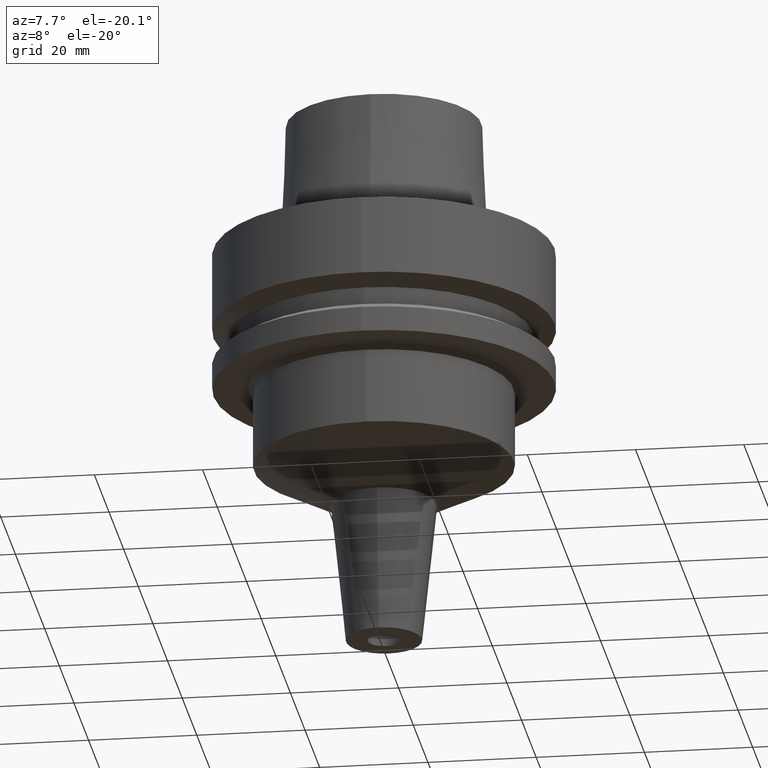
[diagram: clean part render]
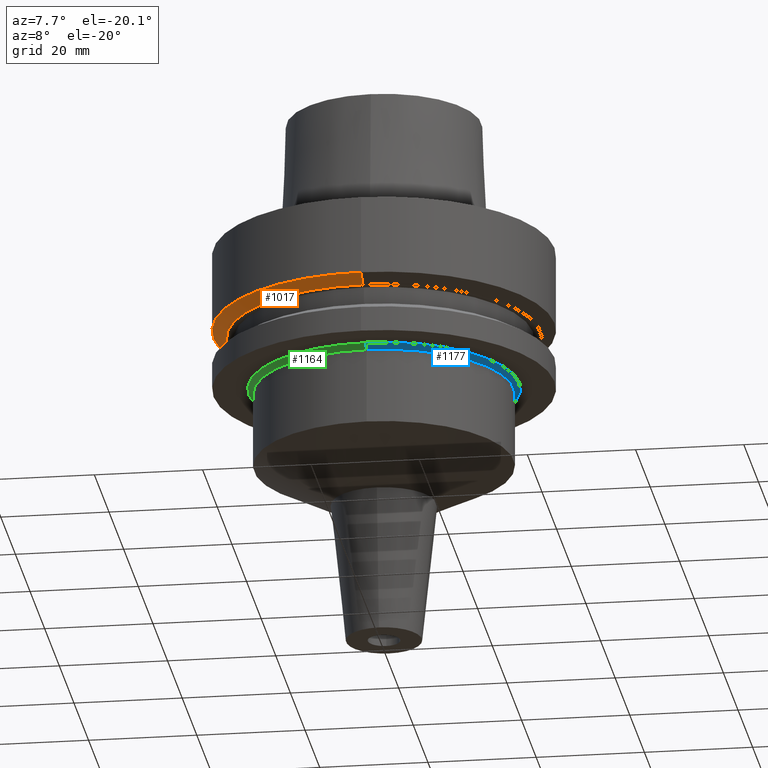
[diagram: same view with three faces highlighted in distinct colors, each labeled with its STEP entity id]
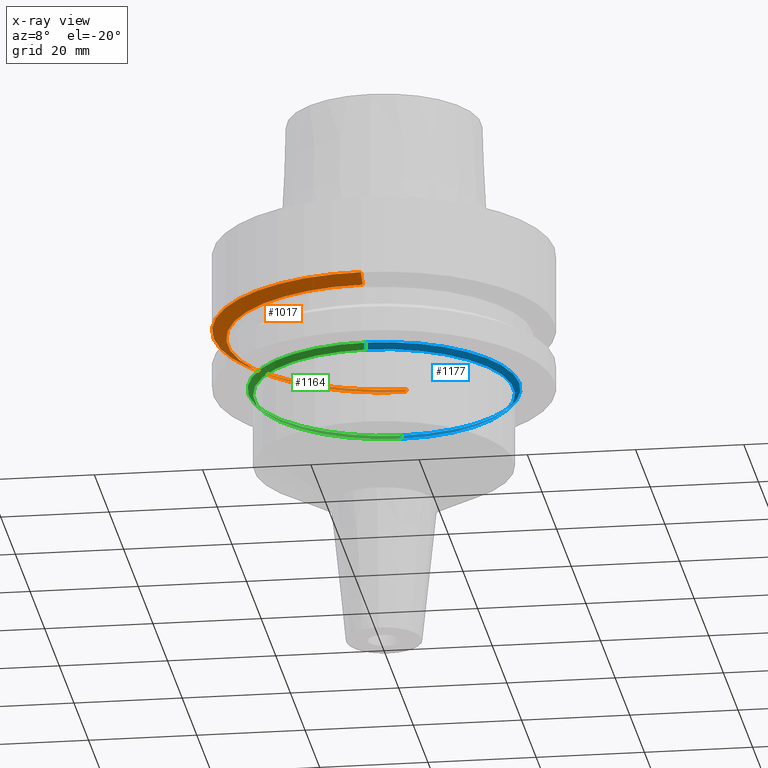
[diagram: x-ray of the same camera — body ghosted, the three highlighted faces saturated]
A machine part, auxiliary view with three faces highlighted in distinct colors.
The next image is the same camera in x-ray (body ghosted, the three faces saturated) — at least one of them is partly hidden behind the body in this view.
Their STEP definitions:

[orange] entity #1017 — the highlighted conical surface has half-angle 60 deg.
#110=DIRECTION('',(0.E0,-8.660254037844E-1,-5.000000000001E-1));
#111=VECTOR('',#110,3.004998149520E0);
#112=CARTESIAN_POINT('',(0.E0,3.15E1,-1.462250092524E1));
#113=LINE('',#112,#111);
#125=CARTESIAN_POINT('',(0.E0,0.E0,-1.462250092524E1));
#126=DIRECTION('',(0.E0,0.E0,1.E0));
#127=DIRECTION('',(0.E0,1.E0,0.E0));
#128=AXIS2_PLACEMENT_3D('',#125,#126,#127);
#133=DIRECTION('',(0.E0,8.660254037844E-1,-5.000000000001E-1));
#134=VECTOR('',#133,3.004998149520E0);
#135=CARTESIAN_POINT('',(0.E0,-3.15E1,-1.462250092524E1));
#136=LINE('',#135,#134);
#148=CARTESIAN_POINT('',(0.E0,0.E0,-1.6125E1));
#149=DIRECTION('',(0.E0,0.E0,1.E0));
#150=DIRECTION('',(0.E0,1.E0,0.E0));
#151=AXIS2_PLACEMENT_3D('',#148,#149,#150);
#884=CARTESIAN_POINT('',(0.E0,-2.889759526419E1,-1.6125E1));
#885=CARTESIAN_POINT('',(0.E0,2.889759526419E1,-1.6125E1));
#886=VERTEX_POINT('',#884);
#887=VERTEX_POINT('',#885);
#888=CARTESIAN_POINT('',(0.E0,3.15E1,-1.462250092524E1));
#889=VERTEX_POINT('',#888);
#890=CARTESIAN_POINT('',(0.E0,-3.15E1,-1.462250092524E1));
#891=VERTEX_POINT('',#890);
#1005=CARTESIAN_POINT('',(0.E0,0.E0,-1.537375046262E1));
#1006=DIRECTION('',(0.E0,0.E0,1.E0));
#1007=DIRECTION('',(0.E0,1.E0,0.E0));
#1008=AXIS2_PLACEMENT_3D('',#1005,#1006,#1007);
#1009=CONICAL_SURFACE('',#1008,3.019879763210E1,6.E1);
#1010=ORIENTED_EDGE('',*,*,#995,.F.);
#1011=ORIENTED_EDGE('',*,*,#972,.T.);
#1012=ORIENTED_EDGE('',*,*,#999,.T.);
#1014=ORIENTED_EDGE('',*,*,#1013,.F.);
#1015=EDGE_LOOP('',(#1010,#1011,#1012,#1014));
#1016=FACE_OUTER_BOUND('',#1015,.F.);
#129=CIRCLE('',#128,3.15E1);
#152=CIRCLE('',#151,2.889759526419E1);
#972=EDGE_CURVE('',#889,#891,#129,.T.);
#995=EDGE_CURVE('',#889,#887,#113,.T.);
#999=EDGE_CURVE('',#891,#886,#136,.T.);
#1013=EDGE_CURVE('',#887,#886,#152,.T.);
#1017=ADVANCED_FACE('',(#1016),#1009,.T.);

[blue] entity #1177 — the highlighted conical surface has half-angle 45 deg.
#286=CARTESIAN_POINT('',(0.E0,0.E0,-2.6E1));
#287=DIRECTION('',(0.E0,0.E0,-1.E0));
#288=DIRECTION('',(0.E0,1.E0,0.E0));
#289=AXIS2_PLACEMENT_3D('',#286,#287,#288);
#294=DIRECTION('',(0.E0,7.071067811865E-1,-7.071067811865E-1));
#295=VECTOR('',#294,1.414213562373E0);
#296=CARTESIAN_POINT('',(0.E0,-2.5E1,-2.6E1));
#297=LINE('',#296,#295);
#309=DIRECTION('',(0.E0,-7.071067811865E-1,-7.071067811865E-1));
#310=VECTOR('',#309,1.414213562373E0);
#311=CARTESIAN_POINT('',(0.E0,2.5E1,-2.6E1));
#312=LINE('',#311,#310);
#316=CARTESIAN_POINT('',(0.E0,0.E0,-2.7E1));
#317=DIRECTION('',(0.E0,0.E0,-1.E0));
#318=DIRECTION('',(0.E0,1.E0,0.E0));
#319=AXIS2_PLACEMENT_3D('',#316,#317,#318);
#856=CARTESIAN_POINT('',(0.E0,2.4E1,-2.7E1));
#857=VERTEX_POINT('',#856);
#858=CARTESIAN_POINT('',(0.E0,-2.4E1,-2.7E1));
#859=VERTEX_POINT('',#858);
#860=CARTESIAN_POINT('',(0.E0,2.5E1,-2.6E1));
#861=VERTEX_POINT('',#860);
#862=CARTESIAN_POINT('',(0.E0,-2.5E1,-2.6E1));
#863=VERTEX_POINT('',#862);
#1165=CARTESIAN_POINT('',(0.E0,0.E0,-2.65E1));
#1166=DIRECTION('',(0.E0,0.E0,1.E0));
#1167=DIRECTION('',(0.E0,1.E0,0.E0));
#1168=AXIS2_PLACEMENT_3D('',#1165,#1166,#1167);
#1169=CONICAL_SURFACE('',#1168,2.45E1,4.5E1);
#1170=ORIENTED_EDGE('',*,*,#1155,.T.);
#1172=ORIENTED_EDGE('',*,*,#1171,.T.);
#1173=ORIENTED_EDGE('',*,*,#1158,.F.);
#1174=ORIENTED_EDGE('',*,*,#1145,.F.);
#1175=EDGE_LOOP('',(#1170,#1172,#1173,#1174));
#1176=FACE_OUTER_BOUND('',#1175,.F.);
#290=CIRCLE('',#289,2.5E1);
#320=CIRCLE('',#319,2.4E1);
#1145=EDGE_CURVE('',#861,#863,#290,.T.);
#1155=EDGE_CURVE('',#861,#857,#312,.T.);
#1158=EDGE_CURVE('',#863,#859,#297,.T.);
#1171=EDGE_CURVE('',#857,#859,#320,.T.);
#1177=ADVANCED_FACE('',(#1176),#1169,.T.);

[green] entity #1164 — the highlighted conical surface has half-angle 45 deg.
#278=CARTESIAN_POINT('',(0.E0,0.E0,-2.6E1));
#279=DIRECTION('',(0.E0,0.E0,-1.E0));
#280=DIRECTION('',(0.E0,-1.E0,0.E0));
#281=AXIS2_PLACEMENT_3D('',#278,#279,#280);
#294=DIRECTION('',(0.E0,7.071067811865E-1,-7.071067811865E-1));
#295=VECTOR('',#294,1.414213562373E0);
#296=CARTESIAN_POINT('',(0.E0,-2.5E1,-2.6E1));
#297=LINE('',#296,#295);
#301=CARTESIAN_POINT('',(0.E0,0.E0,-2.7E1));
#302=DIRECTION('',(0.E0,0.E0,-1.E0));
#303=DIRECTION('',(0.E0,-1.E0,0.E0));
#304=AXIS2_PLACEMENT_3D('',#301,#302,#303);
#309=DIRECTION('',(0.E0,-7.071067811865E-1,-7.071067811865E-1));
#310=VECTOR('',#309,1.414213562373E0);
#311=CARTESIAN_POINT('',(0.E0,2.5E1,-2.6E1));
#312=LINE('',#311,#310);
#856=CARTESIAN_POINT('',(0.E0,2.4E1,-2.7E1));
#857=VERTEX_POINT('',#856);
#858=CARTESIAN_POINT('',(0.E0,-2.4E1,-2.7E1));
#859=VERTEX_POINT('',#858);
#860=CARTESIAN_POINT('',(0.E0,2.5E1,-2.6E1));
#861=VERTEX_POINT('',#860);
#862=CARTESIAN_POINT('',(0.E0,-2.5E1,-2.6E1));
#863=VERTEX_POINT('',#862);
#1150=CARTESIAN_POINT('',(0.E0,0.E0,-2.65E1));
#1151=DIRECTION('',(0.E0,0.E0,1.E0));
#1152=DIRECTION('',(0.E0,1.E0,0.E0));
#1153=AXIS2_PLACEMENT_3D('',#1150,#1151,#1152);
#1154=CONICAL_SURFACE('',#1153,2.45E1,4.5E1);
#1156=ORIENTED_EDGE('',*,*,#1155,.F.);
#1157=ORIENTED_EDGE('',*,*,#1143,.F.);
#1159=ORIENTED_EDGE('',*,*,#1158,.T.);
#1161=ORIENTED_EDGE('',*,*,#1160,.T.);
#1162=EDGE_LOOP('',(#1156,#1157,#1159,#1161));
#1163=FACE_OUTER_BOUND('',#1162,.F.);
#282=CIRCLE('',#281,2.5E1);
#305=CIRCLE('',#304,2.4E1);
#1143=EDGE_CURVE('',#863,#861,#282,.T.);
#1155=EDGE_CURVE('',#861,#857,#312,.T.);
#1158=EDGE_CURVE('',#863,#859,#297,.T.);
#1160=EDGE_CURVE('',#859,#857,#305,.T.);
#1164=ADVANCED_FACE('',(#1163),#1154,.T.);